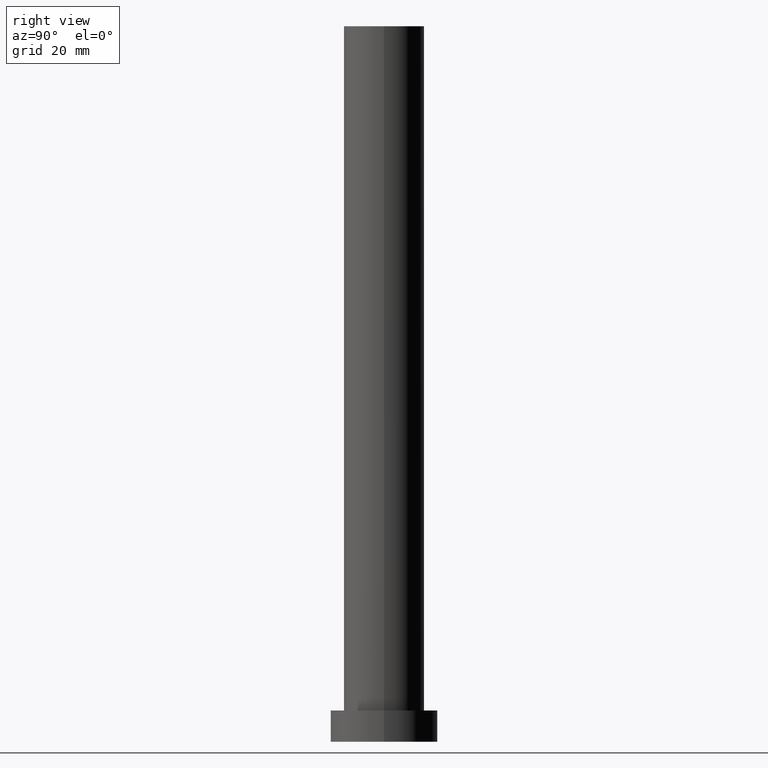
[diagram: clean part render]
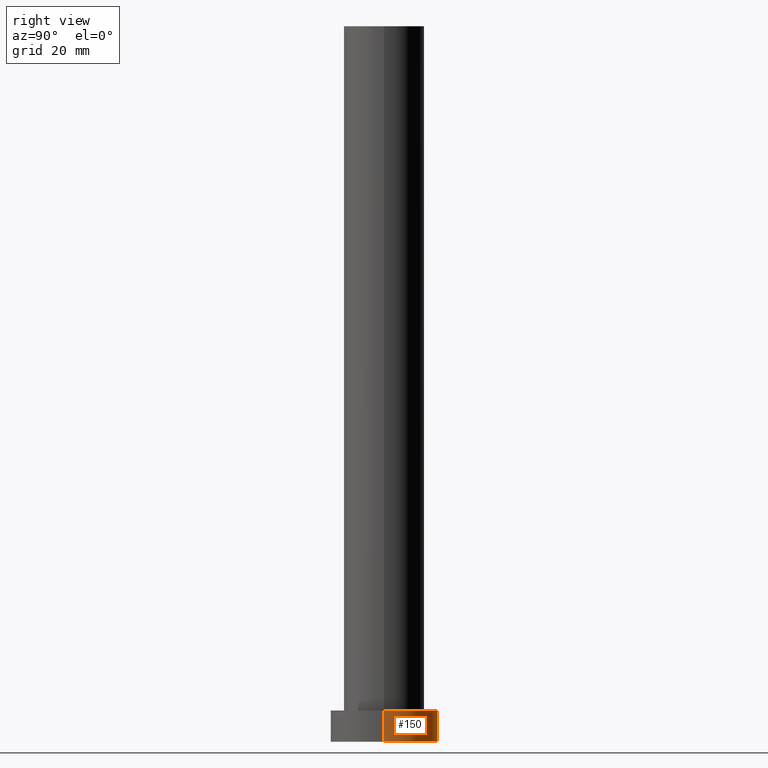
[diagram: same view with one face highlighted and labeled with its STEP entity id]
A machine part, right view. The second image highlights one B-rep face of the part: STEP entity #150.
In plain terms, the highlighted cylindrical surface (partial cylindrical patch) has radius 12 mm, axis along (-0, -0, -1).
Its self-contained STEP definition (entity closure, byte-faithful):
#16 = EDGE_CURVE ( 'NONE', #21, #194, #243, .T. ) ;
#17 = AXIS2_PLACEMENT_3D ( 'NONE', #234, #254, #77 ) ;
#21 = VERTEX_POINT ( 'NONE', #236 ) ;
#28 = CARTESIAN_POINT ( 'NONE',  ( -12.00000000000000178, 0.000000000000000000, 7.000000000000000000 ) ) ;
#36 = FACE_OUTER_BOUND ( 'NONE', #179, .T. ) ;
#45 = LINE ( 'NONE', #69, #209 ) ;
#54 = CIRCLE ( 'NONE', #187, 12.00000000000000178 ) ;
#65 = ORIENTED_EDGE ( 'NONE', *, *, #87, .T. ) ;
#69 = CARTESIAN_POINT ( 'NONE',  ( 12.00000000000000178, 1.469576158976824144E-15, 7.000000000000000000 ) ) ;
#77 = DIRECTION ( 'NONE',  ( 1.000000000000000000, 0.000000000000000000, 0.000000000000000000 ) ) ;
#80 = VERTEX_POINT ( 'NONE', #94 ) ;
#85 = CARTESIAN_POINT ( 'NONE',  ( 0.000000000000000000, 0.000000000000000000, 0.000000000000000000 ) ) ;
#87 = EDGE_CURVE ( 'NONE', #21, #240, #45, .T. ) ;
#89 = ORIENTED_EDGE ( 'NONE', *, *, #16, .F. ) ;
#94 = CARTESIAN_POINT ( 'NONE',  ( -12.00000000000000178, 0.000000000000000000, 0.000000000000000000 ) ) ;
#115 = AXIS2_PLACEMENT_3D ( 'NONE', #235, #134, #175 ) ;
#131 = CYLINDRICAL_SURFACE ( 'NONE', #115, 12.00000000000000178 ) ;
#134 = DIRECTION ( 'NONE',  ( -0.000000000000000000, -0.000000000000000000, -1.000000000000000000 ) ) ;
#139 = ORIENTED_EDGE ( 'NONE', *, *, #195, .T. ) ;
#140 = CARTESIAN_POINT ( 'NONE',  ( -12.00000000000000178, 0.000000000000000000, 7.000000000000000000 ) ) ;
#148 = LINE ( 'NONE', #140, #229 ) ;
#150 = ADVANCED_FACE ( 'NONE', ( #36 ), #131, .T. ) ;
#152 = EDGE_CURVE ( 'NONE', #194, #80, #148, .T. ) ;
#159 = ORIENTED_EDGE ( 'NONE', *, *, #152, .F. ) ;
#164 = CARTESIAN_POINT ( 'NONE',  ( 12.00000000000000178, 1.469576158976824144E-15, 0.000000000000000000 ) ) ;
#175 = DIRECTION ( 'NONE',  ( -1.000000000000000000, 0.000000000000000000, 0.000000000000000000 ) ) ;
#179 = EDGE_LOOP ( 'NONE', ( #89, #65, #139, #159 ) ) ;
#184 = DIRECTION ( 'NONE',  ( 0.000000000000000000, 0.000000000000000000, 1.000000000000000000 ) ) ;
#187 = AXIS2_PLACEMENT_3D ( 'NONE', #85, #184, #245 ) ;
#194 = VERTEX_POINT ( 'NONE', #28 ) ;
#195 = EDGE_CURVE ( 'NONE', #240, #80, #54, .T. ) ;
#209 = VECTOR ( 'NONE', #226, 1000.000000000000000 ) ;
#212 = DIRECTION ( 'NONE',  ( -0.000000000000000000, -0.000000000000000000, -1.000000000000000000 ) ) ;
#226 = DIRECTION ( 'NONE',  ( -0.000000000000000000, -0.000000000000000000, -1.000000000000000000 ) ) ;
#229 = VECTOR ( 'NONE', #212, 1000.000000000000000 ) ;
#234 = CARTESIAN_POINT ( 'NONE',  ( 0.000000000000000000, 0.000000000000000000, 7.000000000000000000 ) ) ;
#235 = CARTESIAN_POINT ( 'NONE',  ( 0.000000000000000000, 0.000000000000000000, 7.000000000000000000 ) ) ;
#236 = CARTESIAN_POINT ( 'NONE',  ( 12.00000000000000178, 1.469576158976824144E-15, 7.000000000000000000 ) ) ;
#240 = VERTEX_POINT ( 'NONE', #164 ) ;
#243 = CIRCLE ( 'NONE', #17, 12.00000000000000178 ) ;
#245 = DIRECTION ( 'NONE',  ( 1.000000000000000000, 0.000000000000000000, 0.000000000000000000 ) ) ;
#254 = DIRECTION ( 'NONE',  ( 0.000000000000000000, 0.000000000000000000, 1.000000000000000000 ) ) ;